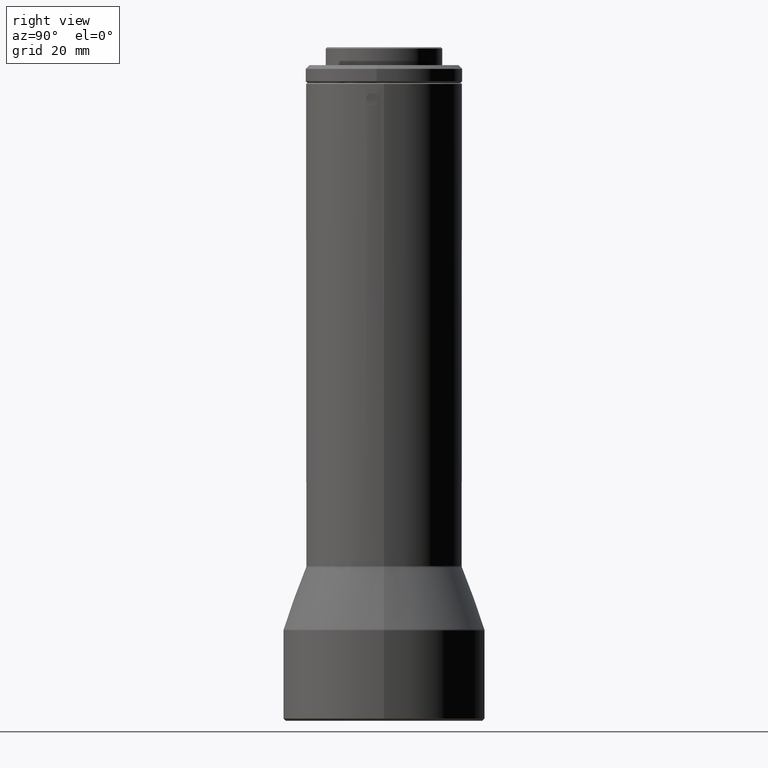
[diagram: clean part render]
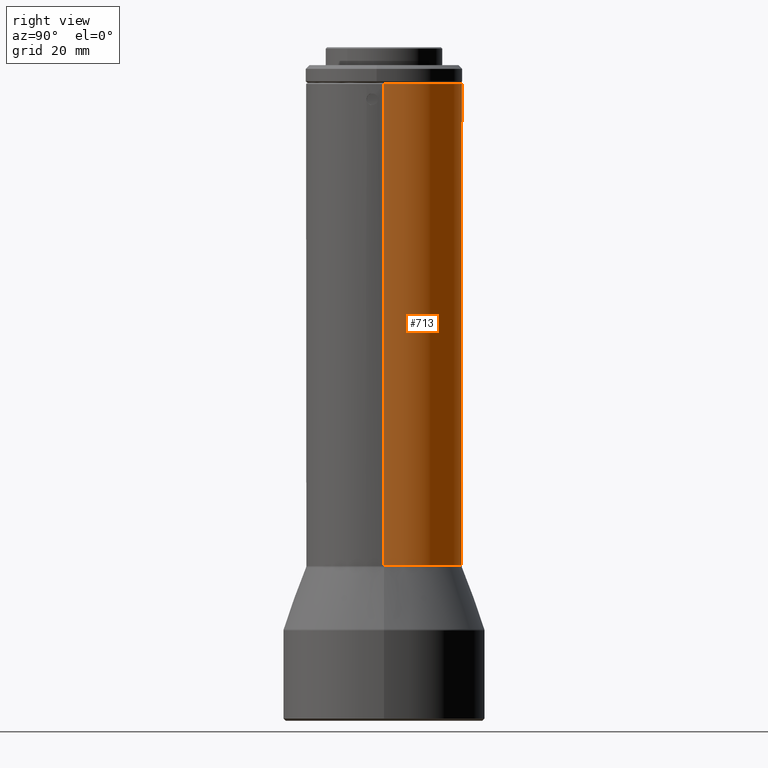
[diagram: same view with one face highlighted and labeled with its STEP entity id]
A machine part, right view. The second image highlights one B-rep face of the part: STEP entity #713.
In plain terms, the highlighted cylindrical surface (partial cylindrical patch) has radius 17 mm, axis along (-0, -0, 1).
Its self-contained STEP definition (entity closure, byte-faithful):
#1 = FACE_BOUND ( 'NONE', #541, .T. ) ;
#25 = EDGE_CURVE ( 'NONE', #645, #285, #1396, .T. ) ;
#80 = VECTOR ( 'NONE', #1202, 1000.000000000000000 ) ;
#91 = VERTEX_POINT ( 'NONE', #286 ) ;
#122 = CARTESIAN_POINT ( 'NONE',  ( -5.007100214293132000, 16.24589017087165000, 101.8397133775706600 ) ) ;
#135 = CARTESIAN_POINT ( 'NONE',  ( -17.00000000000000400, -3.515294156905914800E-015, 21.83130850271087900 ) ) ;
#152 = CARTESIAN_POINT ( 'NONE',  ( -7.335592009734484400, 15.33587590803727400, 102.0865112415162300 ) ) ;
#164 = CARTESIAN_POINT ( 'NONE',  ( 1.932830351480316200E-014, -5.089735884583224300E-014, 105.2213085027108500 ) ) ;
#175 = DIRECTION ( 'NONE',  ( -0.7809365468565790900, 0.6246103663754885000, 0.0000000000000000000 ) ) ;
#252 = CARTESIAN_POINT ( 'NONE',  ( 3.033153964630221900E-015, -5.597193715456416600E-015, 21.83130850271087900 ) ) ;
#259 = CIRCLE ( 'NONE', #1167, 17.00000000000000400 ) ;
#285 = VERTEX_POINT ( 'NONE', #835 ) ;
#286 = CARTESIAN_POINT ( 'NONE',  ( -7.335592009734482700, 15.33587590803727200, 101.9213085027108600 ) ) ;
#294 = CARTESIAN_POINT ( 'NONE',  ( 1.932830351480316200E-014, -5.089735884583224300E-014, 105.2213085027108500 ) ) ;
#320 = AXIS2_PLACEMENT_3D ( 'NONE', #252, #427, #1822 ) ;
#322 = CARTESIAN_POINT ( 'NONE',  ( 17.00000000000002100, -5.597193715456385900E-015, 105.2213085027108500 ) ) ;
#335 = CARTESIAN_POINT ( 'NONE',  ( -5.596657751828154800, 16.05304638825737500, 103.0128807274217000 ) ) ;
#357 = ORIENTED_EDGE ( 'NONE', *, *, #806, .T. ) ;
#364 = VERTEX_POINT ( 'NONE', #446 ) ;
#396 = CARTESIAN_POINT ( 'NONE',  ( -6.897607666710419100, 15.53822194455114100, 100.9219921928989500 ) ) ;
#427 = DIRECTION ( 'NONE',  ( -9.314793397420502900E-020, -0.0000000000000000000, 1.000000000000000000 ) ) ;
#430 = DIRECTION ( 'NONE',  ( 1.000000000000000000, 1.665334536937734800E-016, -7.844521600924530800E-016 ) ) ;
#436 = CARTESIAN_POINT ( 'NONE',  ( -5.038522697198460200, 16.23629218839408500, 102.2489291012809500 ) ) ;
#446 = CARTESIAN_POINT ( 'NONE',  ( -13.27592129656183700, 10.61837622838326000, 105.2213085027108500 ) ) ;
#483 = CARTESIAN_POINT ( 'NONE',  ( -6.491090973344584300, 15.71269280137611400, 103.1390664790824600 ) ) ;
#490 = EDGE_CURVE ( 'NONE', #1089, #1687, #1334, .T. ) ;
#521 = CIRCLE ( 'NONE', #1495, 17.00000000000000700 ) ;
#524 = AXIS2_PLACEMENT_3D ( 'NONE', #294, #1677, #700 ) ;
#541 = EDGE_LOOP ( 'NONE', ( #1612, #357 ) ) ;
#543 = CARTESIAN_POINT ( 'NONE',  ( -7.306176248369807200, 15.35004059700902700, 101.5939260053131900 ) ) ;
#550 = CARTESIAN_POINT ( 'NONE',  ( -7.108038964712661400, 15.44309278603607500, 101.1525289617635900 ) ) ;
#554 = CYLINDRICAL_SURFACE ( 'NONE', #320, 17.00000000000000700 ) ;
#555 = CARTESIAN_POINT ( 'NONE',  ( -5.158165077767761500, 16.19868163943105100, 101.2914993854814300 ) ) ;
#560 = CARTESIAN_POINT ( 'NONE',  ( -5.245711989238317900, 16.17084316301511700, 101.1539360041468100 ) ) ;
#587 = CARTESIAN_POINT ( 'NONE',  ( -5.157597698255660400, 16.19886048399821000, 102.5497958156939400 ) ) ;
#595 = EDGE_CURVE ( 'NONE', #91, #1795, #1183, .T. ) ;
#602 = ORIENTED_EDGE ( 'NONE', *, *, #1395, .T. ) ;
#610 = CARTESIAN_POINT ( 'NONE',  ( -6.766422475244699100, 15.59551690901983200, 103.0067020985440500 ) ) ;
#625 = ORIENTED_EDGE ( 'NONE', *, *, #722, .T. ) ;
#645 = VERTEX_POINT ( 'NONE', #1112 ) ;
#671 = EDGE_LOOP ( 'NONE', ( #1106, #1123, #602, #625, #1402 ) ) ;
#676 = CARTESIAN_POINT ( 'NONE',  ( -6.492797735860961900, 15.71197704702229500, 100.7042014713458500 ) ) ;
#680 = CARTESIAN_POINT ( 'NONE',  ( -5.014938072054966300, 16.24348032233954300, 101.7568385735546300 ) ) ;
#700 = DIRECTION ( 'NONE',  ( -0.7809365468565790900, 0.6246103663754885000, 0.0000000000000000000 ) ) ;
#713 = ADVANCED_FACE ( 'NONE', ( #1, #1223 ), #554, .T. ) ;
#722 = EDGE_CURVE ( 'NONE', #364, #1687, #926, .T. ) ;
#731 = CARTESIAN_POINT ( 'NONE',  ( -6.890924702921500600, 15.54090658590053100, 102.9161592580182800 ) ) ;
#738 = CARTESIAN_POINT ( 'NONE',  ( -7.192297605324546000, 15.40372603202361800, 102.5513020872525100 ) ) ;
#759 = DIRECTION ( 'NONE',  ( 3.330669073875489300E-016, 4.163336342344364100E-017, -1.000000000000000000 ) ) ;
#806 = EDGE_CURVE ( 'NONE', #1795, #91, #1361, .T. ) ;
#816 = CARTESIAN_POINT ( 'NONE',  ( -5.068187144956351800, 16.22696729275017100, 101.5186790370797800 ) ) ;
#826 = CARTESIAN_POINT ( 'NONE',  ( -7.335592009734484400, 15.33587590803727400, 101.7560676773483800 ) ) ;
#830 = CARTESIAN_POINT ( 'NONE',  ( -5.597967873925013800, 16.05259134950996000, 100.8289199696831000 ) ) ;
#835 = CARTESIAN_POINT ( 'NONE',  ( -16.99999999999997900, -3.515294156905951500E-015, 105.2213085027108500 ) ) ;
#857 = DIRECTION ( 'NONE',  ( -9.314793397420502900E-020, -0.0000000000000000000, 1.000000000000000000 ) ) ;
#860 = CARTESIAN_POINT ( 'NONE',  ( -5.007100214285046900, 16.24589017087413400, 101.9213085027103600 ) ) ;
#870 = CARTESIAN_POINT ( 'NONE',  ( -5.246461113495230100, 16.17058878091297200, 102.6892645862191200 ) ) ;
#892 = CARTESIAN_POINT ( 'NONE',  ( -7.335592009734482700, 15.33587590803727200, 101.9213085027108600 ) ) ;
#926 = CIRCLE ( 'NONE', #524, 17.00000000000000700 ) ;
#931 = CARTESIAN_POINT ( 'NONE',  ( -7.335592009734482700, 15.33587590803727200, 101.9213085027108600 ) ) ;
#976 = CARTESIAN_POINT ( 'NONE',  ( -5.045555739830152900, 16.23399593830937700, 101.5966096197870500 ) ) ;
#1026 = CARTESIAN_POINT ( 'NONE',  ( -5.881397558375280900, 15.95092596356018800, 103.1384823655852600 ) ) ;
#1033 = CARTESIAN_POINT ( 'NONE',  ( -6.700455592139286800, 15.62400842074245200, 103.0450520773665600 ) ) ;
#1040 = CARTESIAN_POINT ( 'NONE',  ( -5.465331172979386300, 16.09793312529486500, 102.9198875787279400 ) ) ;
#1047 = CARTESIAN_POINT ( 'NONE',  ( 17.00000000000001100, -5.597193715456416600E-015, 21.83130850271087900 ) ) ;
#1089 = VERTEX_POINT ( 'NONE', #1781 ) ;
#1106 = ORIENTED_EDGE ( 'NONE', *, *, #1193, .T. ) ;
#1112 = CARTESIAN_POINT ( 'NONE',  ( -17.00000000000000700, 8.296167848891474400E-016, 0.5076354834193294000 ) ) ;
#1122 = DIRECTION ( 'NONE',  ( 7.861355739480307100E-016, -5.318304654131179000E-016, 1.000000000000000000 ) ) ;
#1123 = ORIENTED_EDGE ( 'NONE', *, *, #25, .T. ) ;
#1161 = CARTESIAN_POINT ( 'NONE',  ( -5.007100214285046900, 16.24589017087413400, 101.9213085027103600 ) ) ;
#1167 = AXIS2_PLACEMENT_3D ( 'NONE', #1812, #1122, #430 ) ;
#1183 = B_SPLINE_CURVE_WITH_KNOTS ( 'NONE', 3,
 ( #931, #826, #543, #1234, #550, #396, #1498, #676, #1391, #1635, #1510, #830, #1659, #560, #555, #816, #976, #680, #122, #1782 ),
 .UNSPECIFIED., .F., .F.,
 ( 4, 2, 2, 2, 2, 2, 2, 2, 2, 4 ),
 ( 0.0000000000000000000, 0.0004886735322580799700, 0.0009773470645161599300, 0.001466020596774240000, 0.001954694129032319900, 0.002443367661290399700, 0.002932041193548480000, 0.003420714725806559900, 0.003665051491935598900, 0.003909388258064638000 ),
 .UNSPECIFIED. ) ;
#1193 = EDGE_CURVE ( 'NONE', #1089, #645, #259, .T. ) ;
#1202 = DIRECTION ( 'NONE',  ( -9.314793397420502900E-020, -0.0000000000000000000, 1.000000000000000000 ) ) ;
#1223 = FACE_OUTER_BOUND ( 'NONE', #671, .T. ) ;
#1234 = CARTESIAN_POINT ( 'NONE',  ( -7.192368851608332400, 15.40369397269637200, 101.2911708154433400 ) ) ;
#1295 = CARTESIAN_POINT ( 'NONE',  ( -6.033477726398376500, 15.89416156071864200, 103.1711756310487700 ) ) ;
#1309 = CARTESIAN_POINT ( 'NONE',  ( -6.340846824376138900, 15.77405739633816100, 103.1714405686863200 ) ) ;
#1334 = LINE ( 'NONE', #1047, #80 ) ;
#1361 = B_SPLINE_CURVE_WITH_KNOTS ( 'NONE', 3,
 ( #860, #1826, #436, #587, #870, #1040, #335, #1026, #1295, #1309, #483, #1033, #610, #731, #1702, #1574, #738, #1710, #152, #892 ),
 .UNSPECIFIED., .F., .F.,
 ( 4, 2, 2, 2, 2, 2, 2, 2, 2, 4 ),
 ( 0.003909388258064638000, 0.004397949155370896700, 0.004886510052677155300, 0.005375070949983414000, 0.005863631847289673500, 0.006352192744595931300, 0.006596473193249070700, 0.006840753641902208200, 0.007329314539208516300, 0.007817875436514824500 ),
 .UNSPECIFIED. ) ;
#1391 = CARTESIAN_POINT ( 'NONE',  ( -6.340442825064123200, 15.77420023214563800, 100.6713671258103500 ) ) ;
#1395 = EDGE_CURVE ( 'NONE', #285, #364, #521, .T. ) ;
#1396 = LINE ( 'NONE', #135, #1414 ) ;
#1402 = ORIENTED_EDGE ( 'NONE', *, *, #490, .F. ) ;
#1414 = VECTOR ( 'NONE', #857, 1000.000000000000000 ) ;
#1495 = AXIS2_PLACEMENT_3D ( 'NONE', #164, #759, #175 ) ;
#1498 = CARTESIAN_POINT ( 'NONE',  ( -6.769921697002481600, 15.59457615266960700, 100.8288744721812300 ) ) ;
#1510 = CARTESIAN_POINT ( 'NONE',  ( -5.883052828549170800, 15.95031732500511100, 100.7036453767428000 ) ) ;
#1574 = CARTESIAN_POINT ( 'NONE',  ( -7.107697736051558300, 15.44325044630220000, 102.6905818722793000 ) ) ;
#1612 = ORIENTED_EDGE ( 'NONE', *, *, #595, .T. ) ;
#1635 = CARTESIAN_POINT ( 'NONE',  ( -6.036586823368707200, 15.89296157755570600, 100.6712500406161600 ) ) ;
#1659 = CARTESIAN_POINT ( 'NONE',  ( -5.467579917442666500, 16.09718089366112900, 100.9205670907258300 ) ) ;
#1677 = DIRECTION ( 'NONE',  ( 3.330669073875489300E-016, 4.163336342344364100E-017, -1.000000000000000000 ) ) ;
#1687 = VERTEX_POINT ( 'NONE', #322 ) ;
#1702 = CARTESIAN_POINT ( 'NONE',  ( -6.949761512438685800, 15.51464317294458800, 102.8634276185747600 ) ) ;
#1710 = CARTESIAN_POINT ( 'NONE',  ( -7.305570215830750100, 15.35032782499338200, 102.2506348374589500 ) ) ;
#1781 = CARTESIAN_POINT ( 'NONE',  ( 16.99999999999999600, 4.320235122050080900E-015, 0.5076354834193027600 ) ) ;
#1782 = CARTESIAN_POINT ( 'NONE',  ( -5.007100214285046900, 16.24589017087413400, 101.9213085027103600 ) ) ;
#1795 = VERTEX_POINT ( 'NONE', #1161 ) ;
#1812 = CARTESIAN_POINT ( 'NONE',  ( -7.330792791710123900E-015, 1.489166409255931800E-015, 0.5076354834193160800 ) ) ;
#1822 = DIRECTION ( 'NONE',  ( 1.000000000000000000, 0.0000000000000000000, 0.0000000000000000000 ) ) ;
#1826 = CARTESIAN_POINT ( 'NONE',  ( -5.007100214292941900, 16.24589017087170400, 102.0844611390706700 ) ) ;